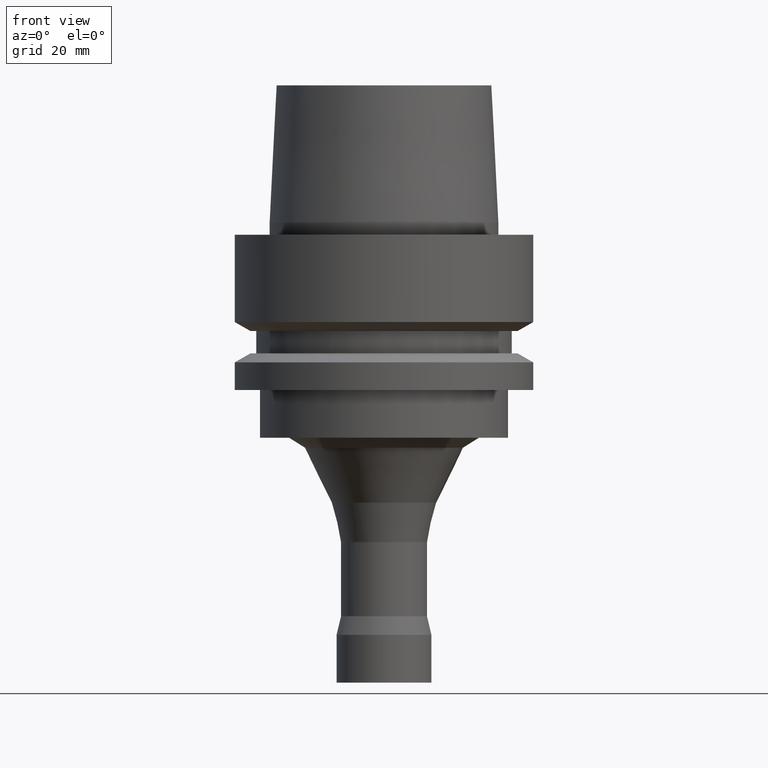
[diagram: clean part render]
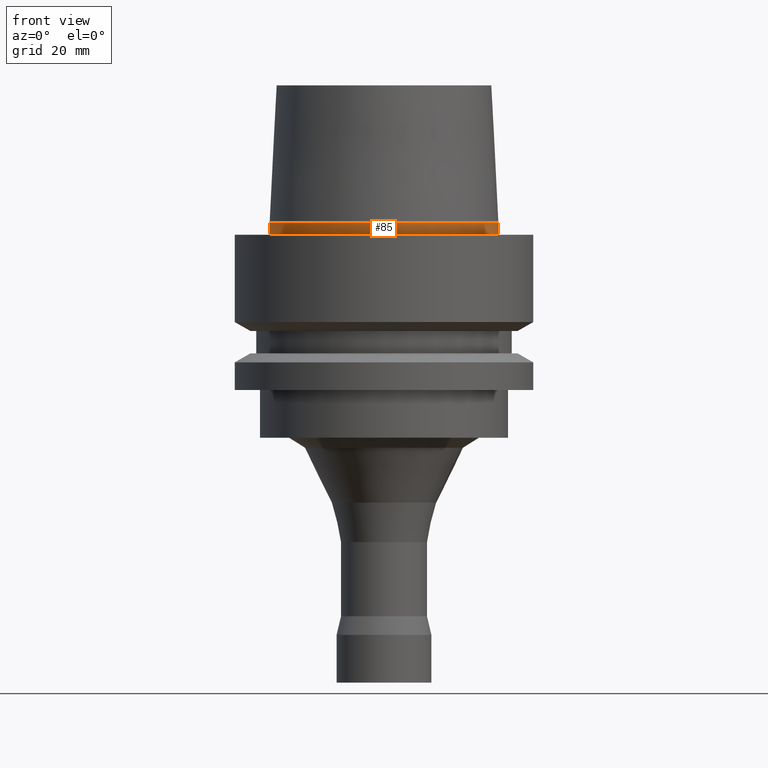
[diagram: same view with one face highlighted and labeled with its STEP entity id]
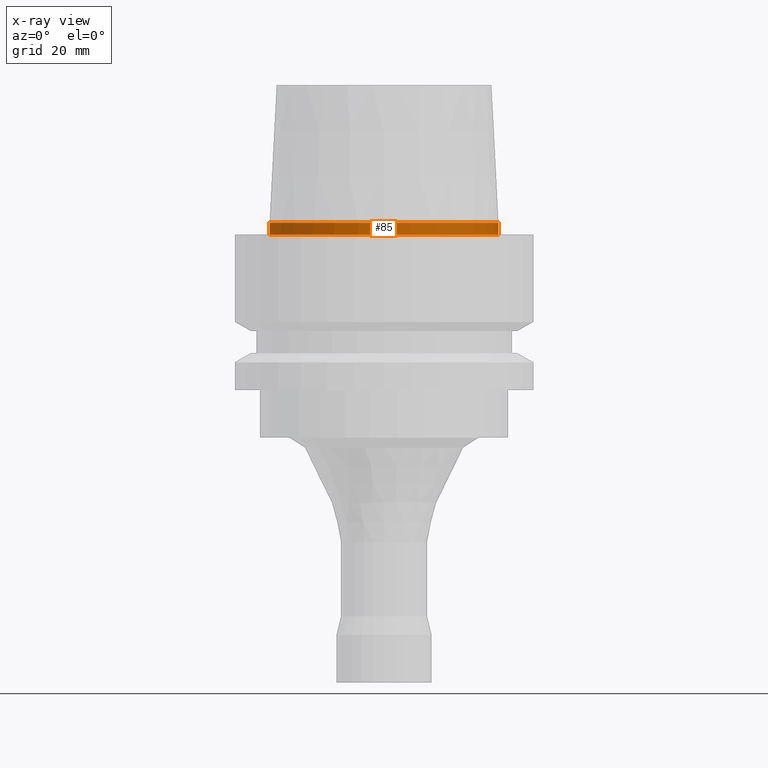
[diagram: x-ray of the same camera — body ghosted, the highlighted face saturated]
A machine part, front view. The second image highlights one B-rep face of the part: STEP entity #85.
The next image is the same camera in x-ray: the body ghosted, the highlighted face saturated — about 0% of this face is hidden behind the body in this view.
In plain terms, the highlighted cylindrical surface (bore or boss wall) has radius 19.15 mm, axis along (-0, -0, 1).
Its self-contained STEP definition (entity closure, byte-faithful):
#85=ADVANCED_FACE('',(#125,#126),#127,.T.);
#125=FACE_BOUND('',#186,.T.);
#126=FACE_BOUND('',#187,.T.);
#127=CYLINDRICAL_SURFACE('',#188,19.15);
#186=EDGE_LOOP('',(#267));
#187=EDGE_LOOP('',(#268));
#188=AXIS2_PLACEMENT_3D('',#269,#270,#271);
#267=ORIENTED_EDGE('',*,*,#332,.F.);
#268=ORIENTED_EDGE('',*,*,#331,.T.);
#269=CARTESIAN_POINT('',(-6.12323399573677E-017,-1.22464679914735E-016,1.0));
#270=DIRECTION('',(-6.12323399573677E-017,-1.22464679914735E-016,1.0));
#271=DIRECTION('',(-1.23259516440783E-032,1.0,1.22464679914735E-016));
#331=EDGE_CURVE('',#360,#360,#361,.T.);
#332=EDGE_CURVE('',#362,#362,#363,.T.);
#360=VERTEX_POINT('',#400);
#361=CIRCLE('',#401,19.15);
#362=VERTEX_POINT('',#402);
#363=CIRCLE('',#403,19.15);
#400=CARTESIAN_POINT('',(-1.22464679914736E-016,19.15,2.0));
#401=AXIS2_PLACEMENT_3D('',#449,#450,#451);
#402=CARTESIAN_POINT('',(-2.360419739841E-031,19.15,2.34519862036718E-015));
#403=AXIS2_PLACEMENT_3D('',#452,#453,#454);
#449=CARTESIAN_POINT('',(-1.22464679914735E-016,-2.44929359829471E-016,2.0));
#450=DIRECTION('',(6.12323399573677E-017,1.22464679914735E-016,-1.0));
#451=DIRECTION('',(-1.23259516440783E-032,1.0,1.22464679914735E-016));
#452=CARTESIAN_POINT('',(0.0,0.0,0.0));
#453=DIRECTION('',(6.12323399573677E-017,1.22464679914735E-016,-1.0));
#454=DIRECTION('',(-1.23259516440783E-032,1.0,1.22464679914735E-016));